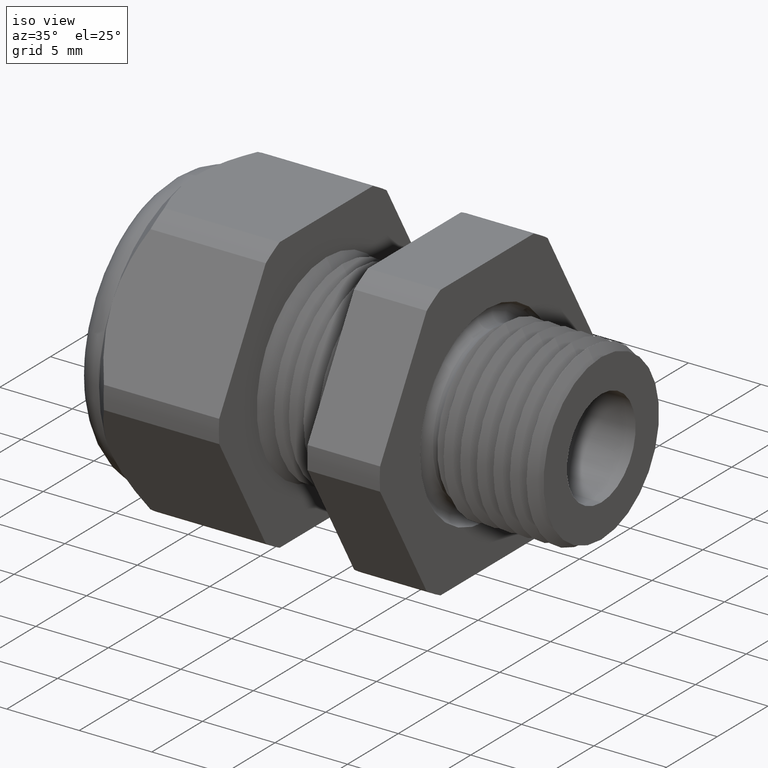
[diagram: clean part render]
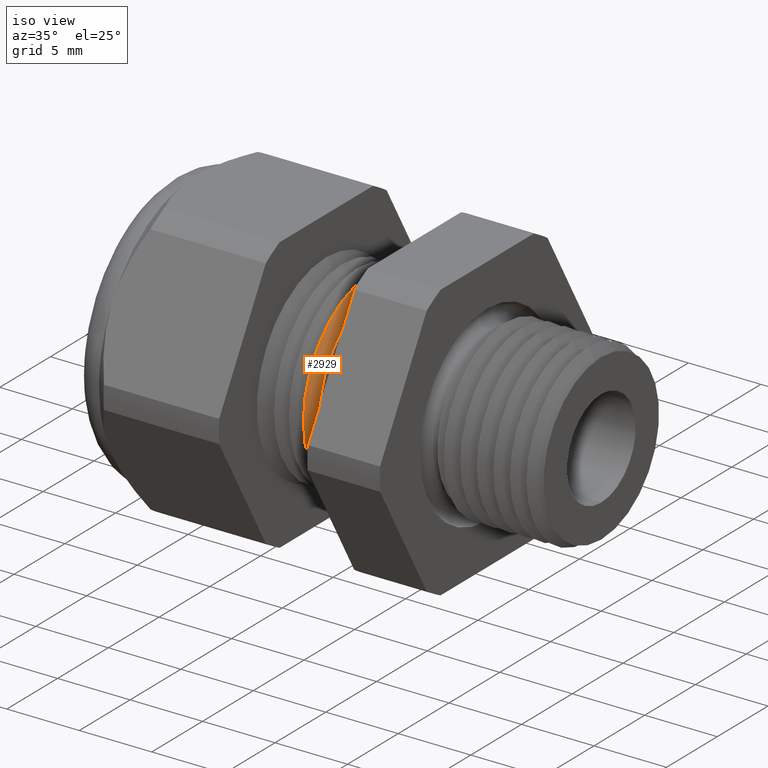
[diagram: same view with one face highlighted and labeled with its STEP entity id]
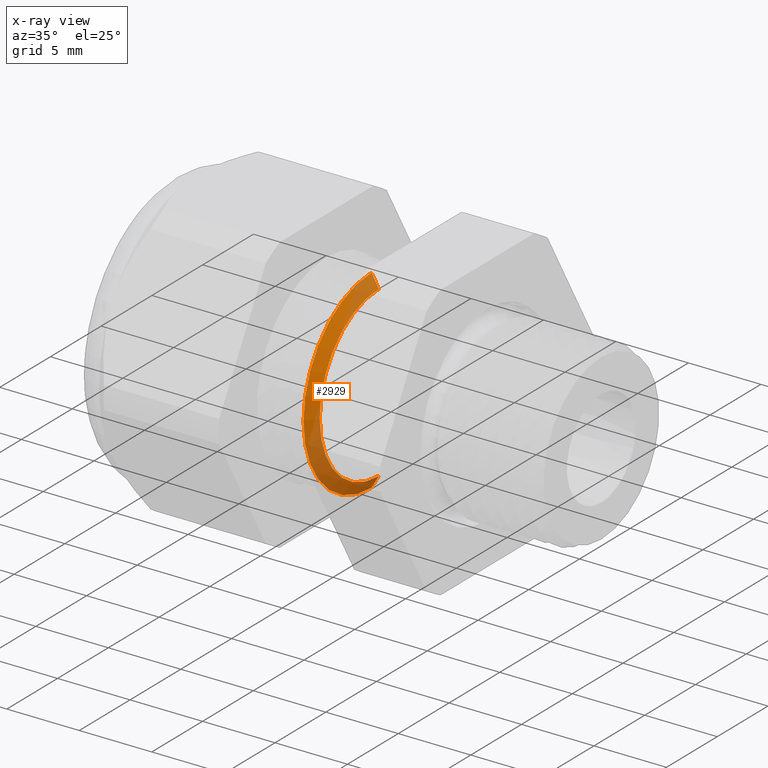
[diagram: x-ray of the same camera — body ghosted, the highlighted face saturated]
A machine part, iso view. The second image highlights one B-rep face of the part: STEP entity #2929.
The next image is the same camera in x-ray: the body ghosted, the highlighted face saturated — about 52% of this face is hidden behind the body in this view.
In plain terms, the highlighted conical surface has half-angle 60 deg.
Its self-contained STEP definition (entity closure, byte-faithful):
#410 = VERTEX_POINT ( 'NONE', #1502 ) ;
#412 = VERTEX_POINT ( 'NONE', #1501 ) ;
#529 = EDGE_CURVE ( 'NONE', #412, #564, #1694, .T. ) ;
#564 = VERTEX_POINT ( 'NONE', #1750 ) ;
#566 = EDGE_CURVE ( 'NONE', #410, #567, #1749, .T. ) ;
#567 = VERTEX_POINT ( 'NONE', #1745 ) ;
#1501 = CARTESIAN_POINT ( 'NONE',  ( -0.6038351230906833200, 0.0000000000000000000, 0.2295000000000000400 ) ) ;
#1502 = CARTESIAN_POINT ( 'NONE',  ( -0.6038351230906833200, 3.022679451788158500E-017, -0.2295000000000000400 ) ) ;
#1686 = DIRECTION ( 'NONE',  ( -0.4999999999999910600, 0.0000000000000000000, 0.8660254037844438100 ) ) ;
#1687 = VECTOR ( 'NONE', #1686, 39.37007874015748100 ) ;
#1688 = CARTESIAN_POINT ( 'NONE',  ( -0.6269291338582678700, 0.0000000000000000000, 0.2695000000000000700 ) ) ;
#1694 = LINE ( 'NONE', #1688, #1687 ) ;
#1745 = CARTESIAN_POINT ( 'NONE',  ( -0.6238351230906830100, 0.0000000000000000000, -0.2641410161513777500 ) ) ;
#1746 = DIRECTION ( 'NONE',  ( -0.4999999999999910600, 1.060575238724913300E-016, -0.8660254037844438100 ) ) ;
#1747 = VECTOR ( 'NONE', #1746, 39.37007874015748100 ) ;
#1748 = CARTESIAN_POINT ( 'NONE',  ( -0.6269291338582678700, 3.300423123702117600E-017, -0.2695000000000000700 ) ) ;
#1749 = LINE ( 'NONE', #1748, #1747 ) ;
#1750 = CARTESIAN_POINT ( 'NONE',  ( -0.6238351230906830100, 3.234794499533140900E-017, 0.2641410161513777500 ) ) ;
#2192 = DIRECTION ( 'NONE',  ( 0.0000000000000000000, 0.0000000000000000000, -1.000000000000000000 ) ) ;
#2193 = DIRECTION ( 'NONE',  ( 1.000000000000000000, 0.0000000000000000000, 0.0000000000000000000 ) ) ;
#2194 = AXIS2_PLACEMENT_3D ( 'NONE', #2199, #2193, #2192 ) ;
#2195 = CIRCLE ( 'NONE', #2194, 0.2295000000000000400 ) ;
#2199 = CARTESIAN_POINT ( 'NONE',  ( -0.6038351230906833200, 0.0000000000000000000, 0.0000000000000000000 ) ) ;
#2279 = DIRECTION ( 'NONE',  ( 0.0000000000000000000, 0.0000000000000000000, 1.000000000000000000 ) ) ;
#2280 = DIRECTION ( 'NONE',  ( -1.000000000000000000, 0.0000000000000000000, 0.0000000000000000000 ) ) ;
#2281 = CARTESIAN_POINT ( 'NONE',  ( -0.6238351230906830100, 0.0000000000000000000, 0.0000000000000000000 ) ) ;
#2282 = AXIS2_PLACEMENT_3D ( 'NONE', #2281, #2280, #2279 ) ;
#2283 = FACE_OUTER_BOUND ( 'NONE', #2918, .T. ) ;
#2288 = CIRCLE ( 'NONE', #2282, 0.2641410161513778100 ) ;
#2336 = DIRECTION ( 'NONE',  ( 0.0000000000000000000, 0.0000000000000000000, 1.000000000000000000 ) ) ;
#2337 = DIRECTION ( 'NONE',  ( -1.000000000000000000, 0.0000000000000000000, 0.0000000000000000000 ) ) ;
#2338 = AXIS2_PLACEMENT_3D ( 'NONE', #2341, #2337, #2336 ) ;
#2339 = CONICAL_SURFACE ( 'NONE', #2338, 0.2695000000000000700, 1.047197551196608100 ) ;
#2341 = CARTESIAN_POINT ( 'NONE',  ( -0.6269291338582678700, 0.0000000000000000000, 0.0000000000000000000 ) ) ;
#2848 = ORIENTED_EDGE ( 'NONE', *, *, #2849, .F. ) ;
#2849 = EDGE_CURVE ( 'NONE', #412, #410, #2195, .T. ) ;
#2850 = ORIENTED_EDGE ( 'NONE', *, *, #2928, .F. ) ;
#2851 = ORIENTED_EDGE ( 'NONE', *, *, #529, .T. ) ;
#2918 = EDGE_LOOP ( 'NONE', ( #2921, #2848, #2851, #2850 ) ) ;
#2921 = ORIENTED_EDGE ( 'NONE', *, *, #566, .F. ) ;
#2928 = EDGE_CURVE ( 'NONE', #567, #564, #2288, .T. ) ;
#2929 = ADVANCED_FACE ( 'NONE', ( #2283 ), #2339, .T. ) ;